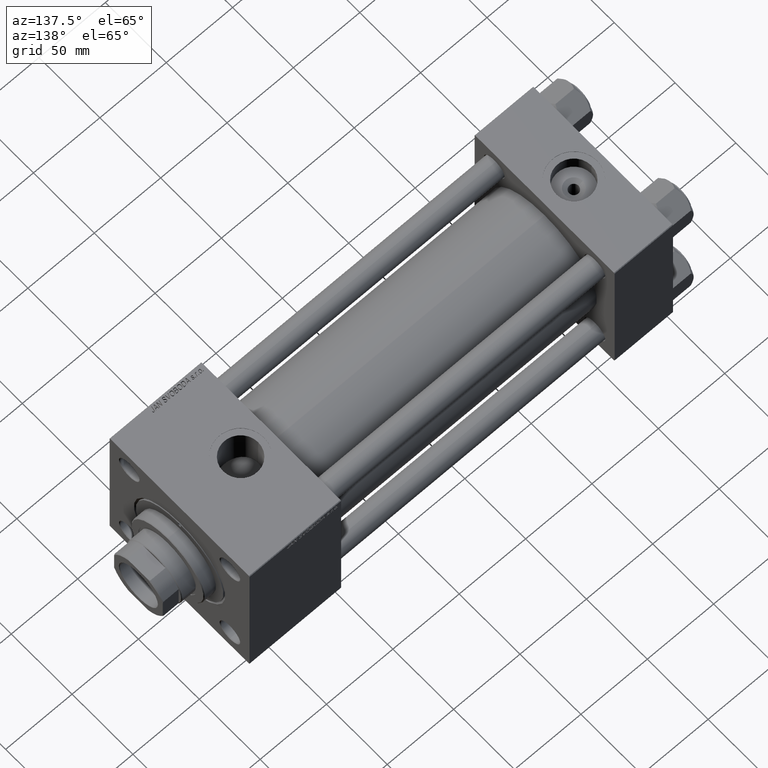
[diagram: clean part render]
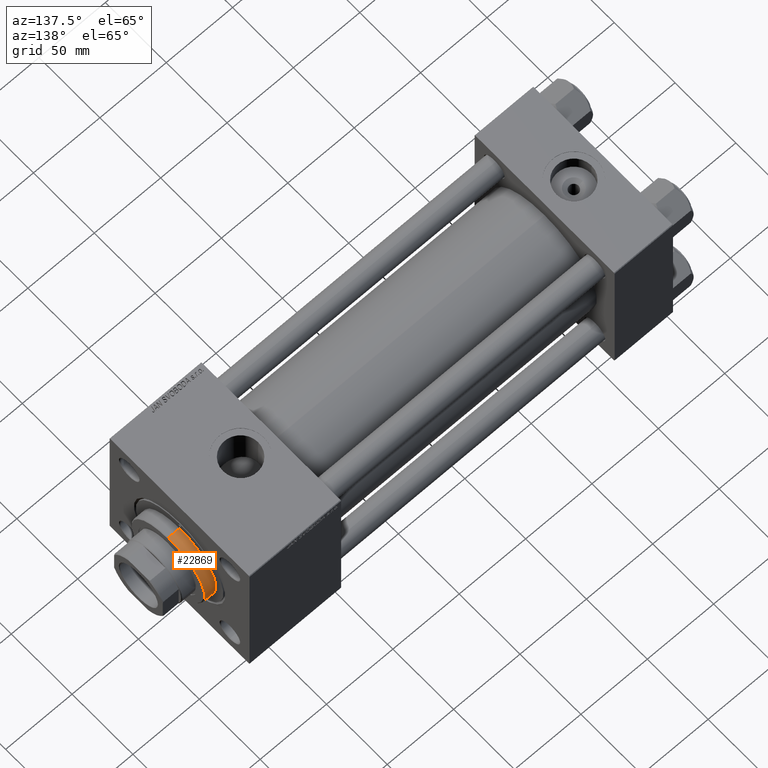
[diagram: same view with one face highlighted and labeled with its STEP entity id]
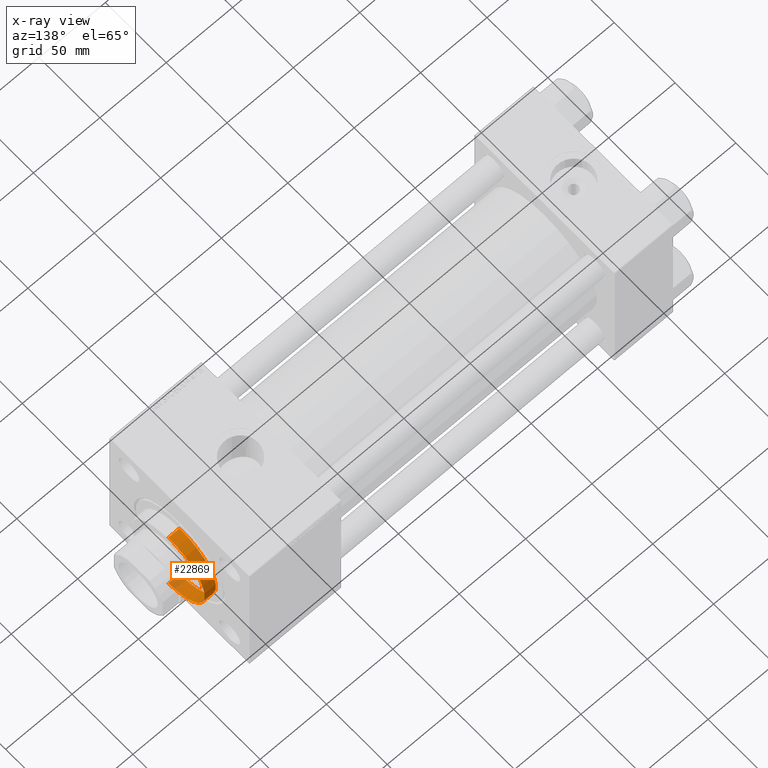
[diagram: x-ray of the same camera — body ghosted, the highlighted face saturated]
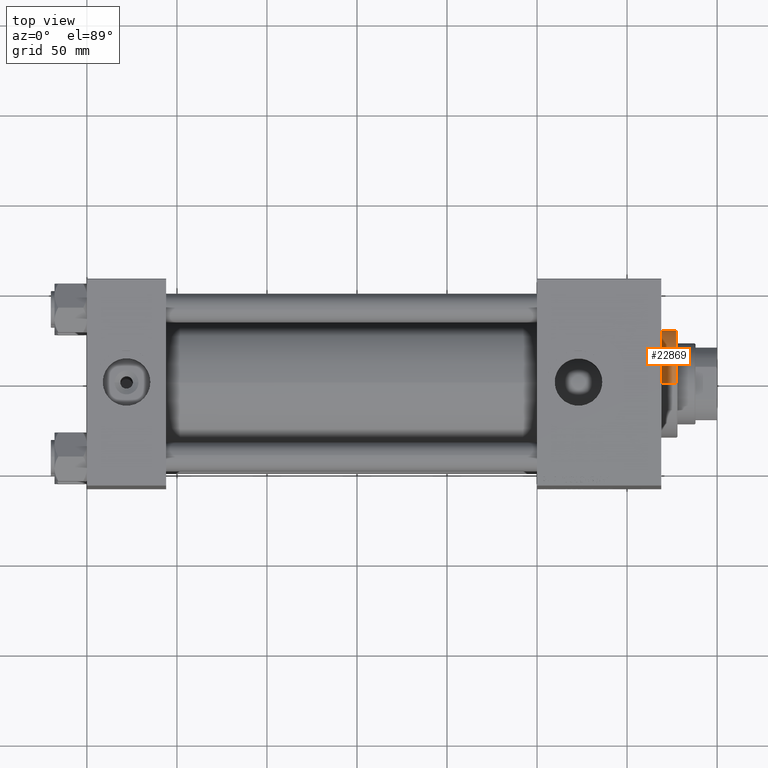
[diagram: same view with one face highlighted and labeled with its STEP entity id]
A machine part, auxiliary view. The second image highlights one B-rep face of the part: STEP entity #22869.
The next image is the same camera in x-ray: the body ghosted, the highlighted face saturated — about 8% of this face is hidden behind the body in this view.
A second angle (top view) of the same face is appended — the face is thin or edge-on in the first view.
In plain terms, the highlighted cylindrical surface (partial cylindrical patch) has radius 30 mm, axis along (-1, -0, -0).
Its self-contained STEP definition (entity closure, byte-faithful):
#1 = CARTESIAN_POINT ( 'NONE',  ( 30.00000000000000000, 3.673940397442059178E-15, 28.69999999999999929 ) ) ;
#1650 = EDGE_CURVE ( 'NONE', #42311, #33024, #10449, .T. ) ;
#1697 = EDGE_LOOP ( 'NONE', ( #32081, #46153, #15925, #24896 ) ) ;
#1929 = AXIS2_PLACEMENT_3D ( 'NONE', #32369, #28342, #28872 ) ;
#4109 = CARTESIAN_POINT ( 'NONE',  ( 0.000000000000000000, 0.000000000000000000, 28.69999999999999929 ) ) ;
#9162 = CARTESIAN_POINT ( 'NONE',  ( -30.00000000000000000, 0.000000000000000000, 28.69999999999999929 ) ) ;
#9789 = EDGE_CURVE ( 'NONE', #14606, #50089, #34538, .T. ) ;
#9824 = CYLINDRICAL_SURFACE ( 'NONE', #37288, 30.00000000000000000 ) ;
#10449 = CIRCLE ( 'NONE', #1929, 30.00000000000000000 ) ;
#13283 = VECTOR ( 'NONE', #50390, 1000.000000000000000 ) ;
#13666 = CARTESIAN_POINT ( 'NONE',  ( 30.00000000000000000, 3.673940397442059178E-15, 37.20000000000000284 ) ) ;
#13841 = CARTESIAN_POINT ( 'NONE',  ( 0.000000000000000000, 0.000000000000000000, 37.69999999999999574 ) ) ;
#14606 = VERTEX_POINT ( 'NONE', #1 ) ;
#15925 = ORIENTED_EDGE ( 'NONE', *, *, #9789, .T. ) ;
#15961 = LINE ( 'NONE', #32280, #41611 ) ;
#16406 = DIRECTION ( 'NONE',  ( 1.000000000000000000, 0.000000000000000000, 0.000000000000000000 ) ) ;
#16480 = EDGE_CURVE ( 'NONE', #33024, #14606, #21757, .T. ) ;
#20342 = EDGE_CURVE ( 'NONE', #42311, #50089, #15961, .T. ) ;
#21757 = LINE ( 'NONE', #49587, #13283 ) ;
#22869 = ADVANCED_FACE ( 'NONE', ( #34169 ), #9824, .T. ) ;
#24896 = ORIENTED_EDGE ( 'NONE', *, *, #20342, .F. ) ;
#28342 = DIRECTION ( 'NONE',  ( 0.000000000000000000, 0.000000000000000000, -1.000000000000000000 ) ) ;
#28872 = DIRECTION ( 'NONE',  ( 1.000000000000000000, 0.000000000000000000, 0.000000000000000000 ) ) ;
#30145 = DIRECTION ( 'NONE',  ( -1.000000000000000000, 0.000000000000000000, 0.000000000000000000 ) ) ;
#32081 = ORIENTED_EDGE ( 'NONE', *, *, #1650, .T. ) ;
#32280 = CARTESIAN_POINT ( 'NONE',  ( -30.00000000000000000, 0.000000000000000000, 37.69999999999999574 ) ) ;
#32369 = CARTESIAN_POINT ( 'NONE',  ( 0.000000000000000000, 0.000000000000000000, 37.20000000000000284 ) ) ;
#33024 = VERTEX_POINT ( 'NONE', #13666 ) ;
#34169 = FACE_OUTER_BOUND ( 'NONE', #1697, .T. ) ;
#34538 = CIRCLE ( 'NONE', #46485, 30.00000000000000000 ) ;
#37288 = AXIS2_PLACEMENT_3D ( 'NONE', #13841, #41656, #30145 ) ;
#41611 = VECTOR ( 'NONE', #48589, 1000.000000000000000 ) ;
#41656 = DIRECTION ( 'NONE',  ( -0.000000000000000000, -0.000000000000000000, -1.000000000000000000 ) ) ;
#42311 = VERTEX_POINT ( 'NONE', #48505 ) ;
#46153 = ORIENTED_EDGE ( 'NONE', *, *, #16480, .T. ) ;
#46485 = AXIS2_PLACEMENT_3D ( 'NONE', #4109, #47985, #16406 ) ;
#47985 = DIRECTION ( 'NONE',  ( 0.000000000000000000, 0.000000000000000000, 1.000000000000000000 ) ) ;
#48505 = CARTESIAN_POINT ( 'NONE',  ( -30.00000000000000000, 0.000000000000000000, 37.20000000000000284 ) ) ;
#48589 = DIRECTION ( 'NONE',  ( -0.000000000000000000, -0.000000000000000000, -1.000000000000000000 ) ) ;
#49587 = CARTESIAN_POINT ( 'NONE',  ( 30.00000000000000000, 3.673940397442059178E-15, 37.69999999999999574 ) ) ;
#50089 = VERTEX_POINT ( 'NONE', #9162 ) ;
#50390 = DIRECTION ( 'NONE',  ( -0.000000000000000000, -0.000000000000000000, -1.000000000000000000 ) ) ;